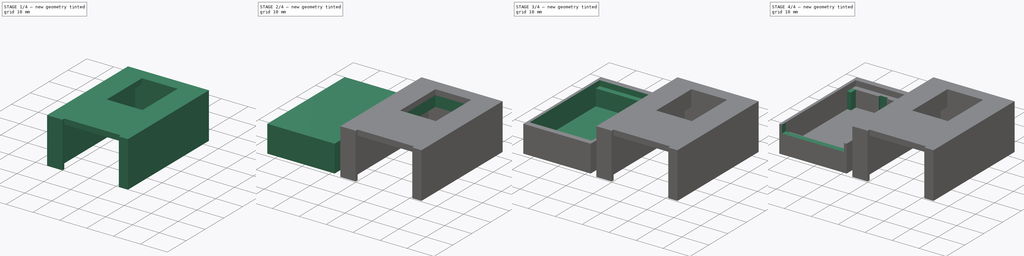
[diagram: build sequence overview — one tinted view per stage of 4, left to right]
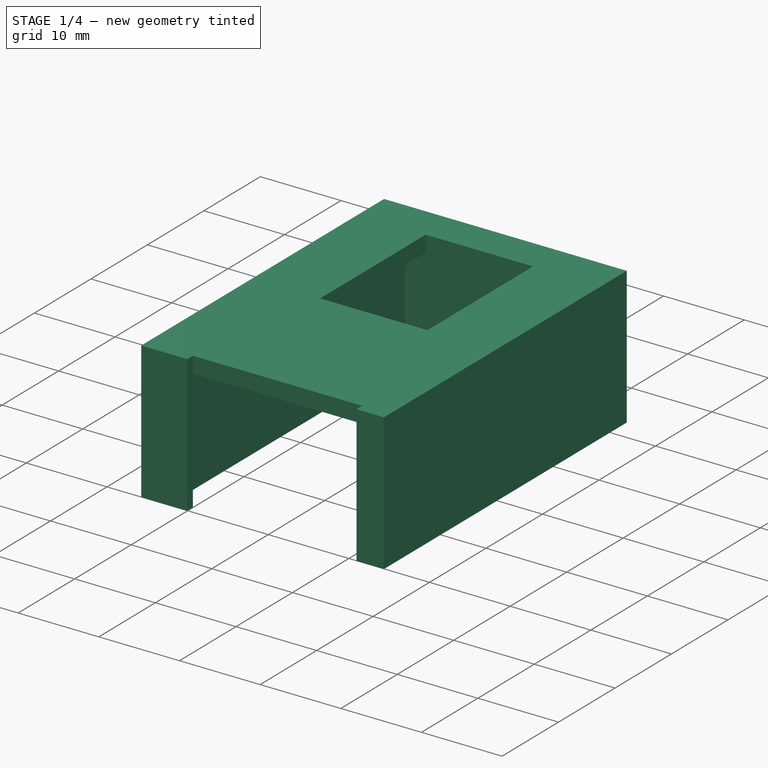
[diagram: stage 1 of 4 — iso view after this stage's code; geometry added in this stage tinted green]
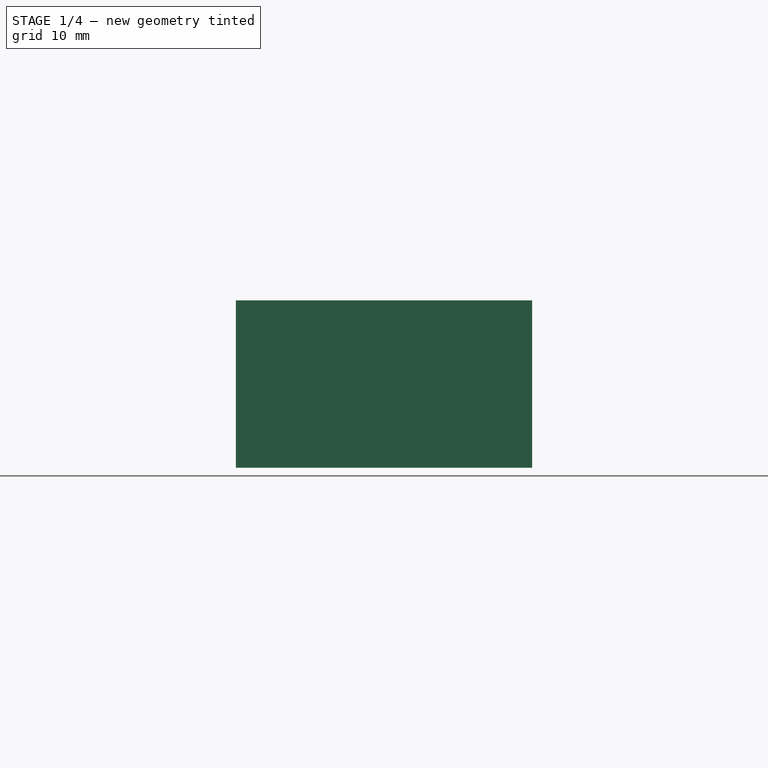
[diagram: stage 1 of 4 — front view after this stage's code; geometry added in this stage tinted green]
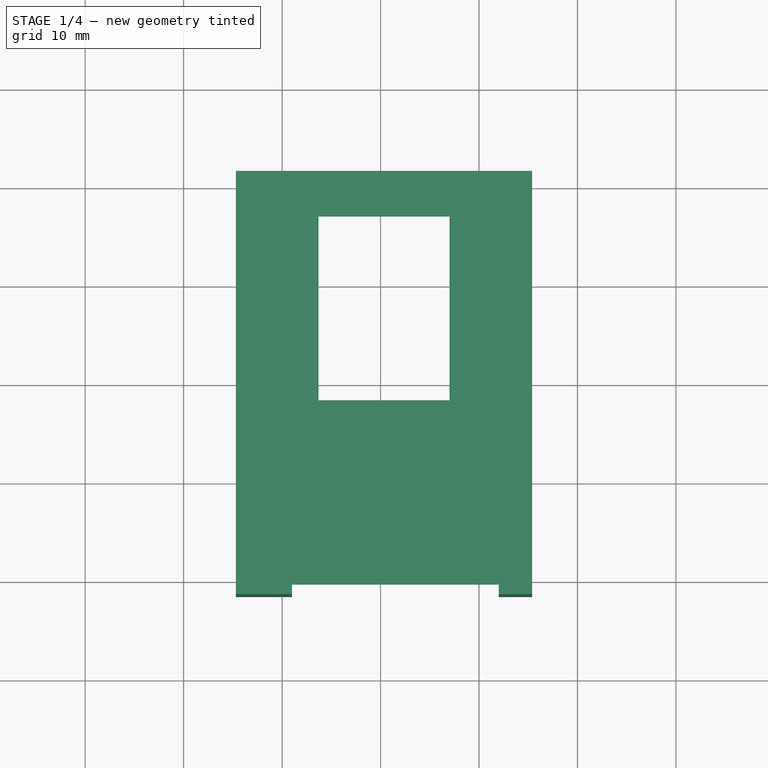
[diagram: stage 1 of 4 — top view after this stage's code; geometry added in this stage tinted green]
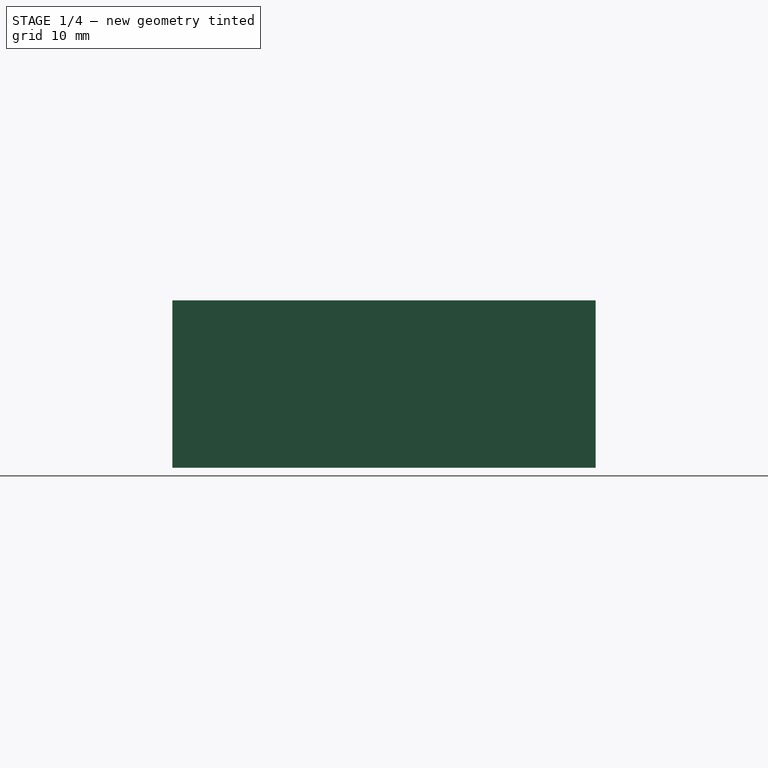
[diagram: stage 1 of 4 — right view after this stage's code; geometry added in this stage tinted green]
FCSTD DOCUMENT  (FreeCAD 0.17R13528 (Git))
Label: Caja-7segmentos
License: All rights reserved
LicenseURL: http://en.wikipedia.org/wiki/All_rights_reserved
objects: Sketcher::SketchObject×12, PartDesign::Pocket×7, PartDesign::Pad×5, PartDesign::Body×2, App::DocumentObjectGroup×2, Part::FeaturePython×2
note: 40 computed .brp shape members not serialized (recipe doc carries the construction recipe); baked Part::Feature solids carry a one-line shape summary decoded from their .brp

FEATURE [Sketcher::SketchObject] Sketch007
  MapMode = 5
  Support = -> [XY_Plane001]
  sketch-geometry (12):
    g0: LineSegment [constr] StartX=20 StartY=18.5 StartZ=0 EndX=43 EndY=18.5 EndZ=0
    g1: LineSegment [constr] StartX=43 StartY=18.5 StartZ=0 EndX=43 EndY=-18.5 EndZ=0
    g2: LineSegment [constr] StartX=43 StartY=-18.5 StartZ=0 EndX=20 EndY=-18.5 EndZ=0
    g3: LineSegment [constr] StartX=20 StartY=-18.5 StartZ=0 EndX=20 EndY=18.5 EndZ=0
    g4: LineSegment StartX=17.6 StartY=21.5 StartZ=0 EndX=45.4 EndY=21.5 EndZ=0
    g5: LineSegment StartX=45.4 StartY=21.5 StartZ=0 EndX=45.4 EndY=-21.5 EndZ=0
    g6: LineSegment StartX=45.4 StartY=-21.5 StartZ=0 EndX=42 EndY=-21.5 EndZ=0
    g7: LineSegment StartX=17.6 StartY=-21.5 StartZ=0 EndX=17.6 EndY=21.5 EndZ=0
    g8: LineSegment StartX=21 StartY=-21.5 StartZ=0 EndX=21 EndY=-20.5 EndZ=0
    g9: LineSegment StartX=21 StartY=-20.5 StartZ=0 EndX=42 EndY=-20.5 EndZ=0
    g10: LineSegment StartX=42 StartY=-20.5 StartZ=0 EndX=42 EndY=-21.5 EndZ=0
    g11: LineSegment StartX=21 StartY=-21.5 StartZ=0 EndX=17.6 EndY=-21.5 EndZ=0
  constraints (35):
    c: Coincident(g0,g1)
    c: Coincident(g1,g2)
    c: Coincident(g2,g3)
    c: Coincident(g3,g0)
    c: Horizontal(g0)
    c: Horizontal(g2)
    c: Vertical(g1)
    c: Vertical(g3)
    c: Symmetric(g0,g2,g-1)
    c: DistanceX(g-1,g2) = 20
    c: DistanceX(g0,g0) = 23
    c: DistanceY(g1,g1) = 37
    c: Coincident(g4,g5)
    c: Coincident(g5,g6)
    c: Coincident(g11,g7)
    c: Coincident(g7,g4)
    c: Horizontal(g4)
    c: Horizontal(g6)
    c: Vertical(g5)
    c: Vertical(g7)
    c: Vertical(g8)
    c: Coincident(g8,g9)
    c: Horizontal(g9)
    c: Coincident(g9,g10)
    c: Vertical(g10)
    c: Tangent(g6,g11)
    c: Coincident(g8,g11)
    c: Coincident(g10,g6)
    c: DistanceX(g4,g0) = 2.4
    c: DistanceY(g7,g2) = 3
    c: DistanceY(g8,g8) = 1
    c: Symmetric(g4,g7,g-1)
    c: DistanceX(g0,g4) = 2.4
    c: Equal(g6,g11)
    c: DistanceX(g9,g1) = 1
FEATURE [PartDesign::Pad] Pad001  label="tapa-1"
  Length = 17
  Length2 = 100
  Profile = -> Sketch007
  Type = 0
FEATURE [Sketcher::SketchObject] Sketch008
  ExternalGeometry = -> [Pad001]
  MapMode = 5
  Placement = pos=(0,0,0) rot=(1,0,0;3.14159rad)
  Support = -> [Pad001]
  sketch-geometry (4):
    g0: LineSegment StartX=18.6 StartY=20.5 StartZ=0 EndX=44.4 EndY=20.5 EndZ=0
    g1: LineSegment StartX=44.4 StartY=20.5 StartZ=0 EndX=44.4 EndY=-20.5 EndZ=0
    g2: LineSegment StartX=44.4 StartY=-20.5 StartZ=0 EndX=18.6 EndY=-20.5 EndZ=0
    g3: LineSegment StartX=18.6 StartY=-20.5 StartZ=0 EndX=18.6 EndY=20.5 EndZ=0
  constraints (12):
    c: Coincident(g0,g1)
    c: Coincident(g1,g2)
    c: Coincident(g2,g3)
    c: Coincident(g3,g0)
    c: Horizontal(g0)
    c: Horizontal(g2)
    c: Vertical(g1)
    c: Vertical(g3)
    c: Symmetric(g0,g2,g-1)
    c: DistanceY(g-3,g2) = 1
    c: DistanceX(g1,g-3) = 1
    c: DistanceX(g-3,g2) = 1
FEATURE [PartDesign::Pocket] Pocket005  label="tapa-2"
  BaseFeature = -> Pad001
  Length = 15
  Length2 = 100
  Profile = -> Sketch008
  Type = 0
FEATURE [Sketcher::SketchObject] Sketch009
  ExternalGeometry = -> [Pocket005]
  MapMode = 5
  Placement = pos=(0,0,17) rot=(0,0,1;0rad)
  Support = -> [Pocket005]
  sketch-geometry (8):
    g0: LineSegment [constr] StartX=24.2 StartY=16.4 StartZ=0 EndX=36.5 EndY=16.4 EndZ=0
    g1: LineSegment [constr] StartX=36.5 StartY=16.4 StartZ=0 EndX=36.5 EndY=-1.3 EndZ=0
    g2: LineSegment [constr] StartX=36.5 StartY=-1.3 StartZ=0 EndX=24.2 EndY=-1.3 EndZ=0
    g3: LineSegment [constr] StartX=24.2 StartY=-1.3 StartZ=0 EndX=24.2 EndY=16.4 EndZ=0
    g4: LineSegment StartX=23.7 StartY=16.9 StartZ=0 EndX=37 EndY=16.9 EndZ=0
    g5: LineSegment StartX=37 StartY=16.9 StartZ=0 EndX=37 EndY=-1.8 EndZ=0
    g6: LineSegment StartX=37 StartY=-1.8 StartZ=0 EndX=23.7 EndY=-1.8 EndZ=0
    g7: LineSegment StartX=23.7 StartY=-1.8 StartZ=0 EndX=23.7 EndY=16.9 EndZ=0
  constraints (24):
    c: Coincident(g0,g1)
    c: Coincident(g1,g2)
    c: Coincident(g2,g3)
    c: Coincident(g3,g0)
    c: Horizontal(g0)
    c: Horizontal(g2)
    c: Vertical(g1)
    c: Vertical(g3)
    c: DistanceX(g0,g0) = 12.3
    c: DistanceY(g1,g1) = 17.7
    c: Coincident(g4,g5)
    c: Coincident(g5,g6)
    c: Coincident(g6,g7)
    c: Coincident(g7,g4)
    c: Horizontal(g4)
    c: Horizontal(g6)
    c: Vertical(g5)
    c: Vertical(g7)
    c: DistanceY(g6,g2) = 0.5
    c: DistanceX(g6,g2) = 0.5
    c: DistanceX(g1,g5) = 0.5
    c: DistanceY(g0,g4) = 0.5
    c: DistanceY(g4,g-3) = 4.6
    c: DistanceX(g4,g-3) = 8.4
FEATURE [PartDesign::Pocket] Pocket006  label="tapa-3"
  BaseFeature = -> Pocket005
  Length = 5
  Length2 = 100
  Profile = -> Sketch009
  Type = 0
FEATURE [Sketcher::SketchObject] Sketch010
  ExternalGeometry = -> [Pocket006]
  MapMode = 5
  Support = -> [XY_Plane001]
  sketch-geometry (4):
    g0: LineSegment StartX=15.3 StartY=21.5 StartZ=0 EndX=17.6 EndY=21.5 EndZ=0
    g1: LineSegment StartX=17.6 StartY=21.5 StartZ=0 EndX=17.6 EndY=-21.5 EndZ=0
    g2: LineSegment StartX=17.6 StartY=-21.5 StartZ=0 EndX=15.3 EndY=-21.5 EndZ=0
    g3: LineSegment StartX=15.3 StartY=-21.5 StartZ=0 EndX=15.3 EndY=21.5 EndZ=0
  constraints (12):
    c: Coincident(g0,g1)
    c: Coincident(g1,g2)
    c: Coincident(g2,g3)
    c: Coincident(g3,g0)
    c: Horizontal(g0)
    c: Horizontal(g2)
    c: Vertical(g1)
    c: Vertical(g3)
    c: DistanceX(g2,g2) = 2.3
    c: DistanceY(g0,g-3) = 0
    c: DistanceX(g1,g-3) = 0
    c: DistanceY(g1,g1) = 43
FEATURE [PartDesign::Pad] Pad002  label="tapa-4"
  BaseFeature = -> Pocket006
  Length = 17
  Length2 = 100
  Profile = -> Sketch010
  Type = 0
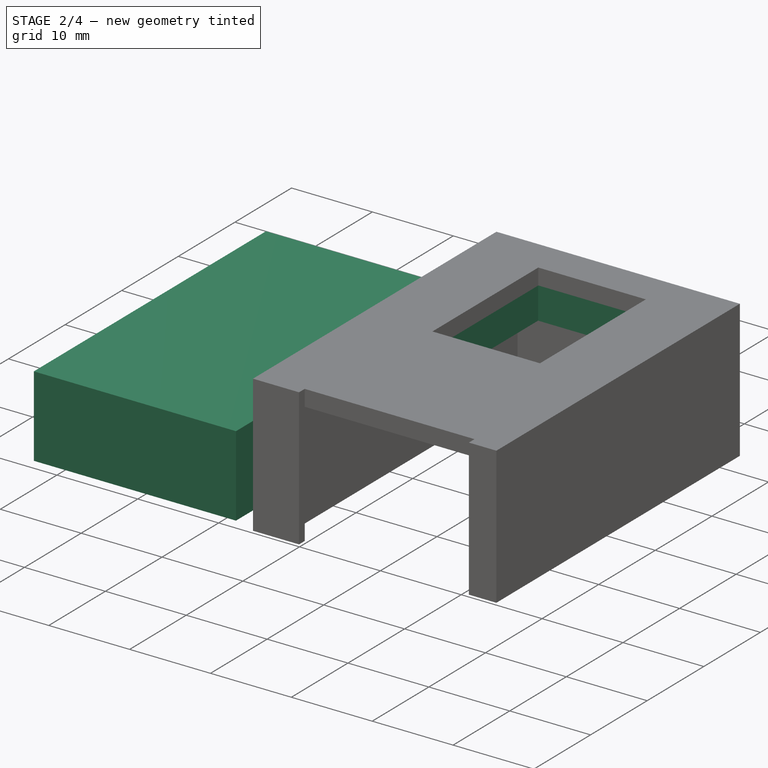
[diagram: stage 2 of 4 — iso view after this stage's code; geometry added in this stage tinted green]
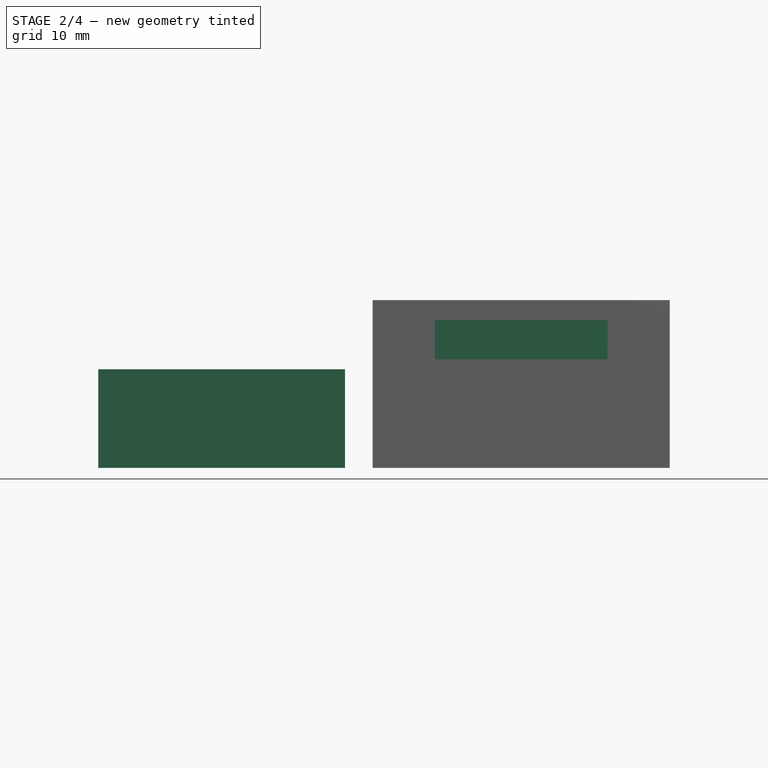
[diagram: stage 2 of 4 — front view after this stage's code; geometry added in this stage tinted green]
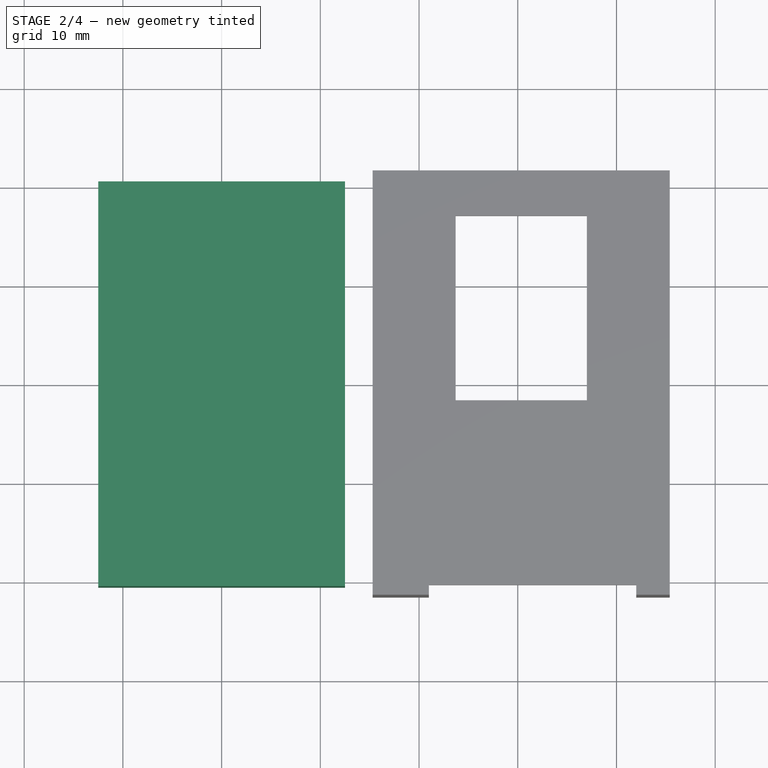
[diagram: stage 2 of 4 — top view after this stage's code; geometry added in this stage tinted green]
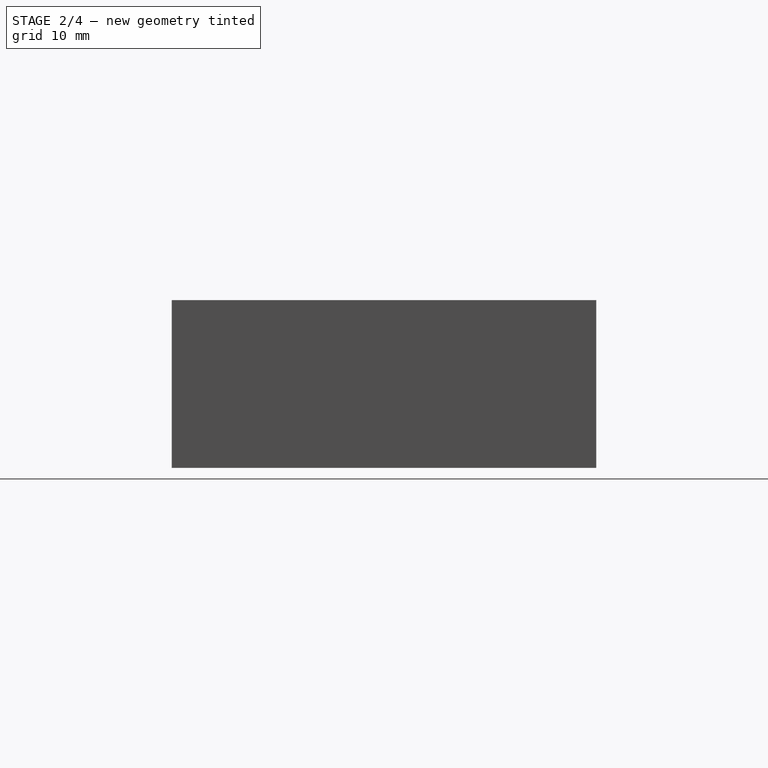
[diagram: stage 2 of 4 — right view after this stage's code; geometry added in this stage tinted green]
FEATURE [Sketcher::SketchObject] Sketch  label="Sketch-base"
  MapMode = 5
  Support = -> [XY_Plane]
  sketch-geometry (8):
    g0: LineSegment [constr] StartX=-11.5 StartY=18.5 StartZ=0 EndX=11.5 EndY=18.5 EndZ=0
    g1: LineSegment [constr] StartX=11.5 StartY=18.5 StartZ=0 EndX=11.5 EndY=-18.5 EndZ=0
    g2: LineSegment [constr] StartX=11.5 StartY=-18.5 StartZ=0 EndX=-11.5 EndY=-18.5 EndZ=0
    g3: LineSegment [constr] StartX=-11.5 StartY=-18.5 StartZ=0 EndX=-11.5 EndY=18.5 EndZ=0
    g4: LineSegment StartX=-12.5 StartY=20.5 StartZ=0 EndX=12.5 EndY=20.5 EndZ=0
    g5: LineSegment StartX=12.5 StartY=20.5 StartZ=0 EndX=12.5 EndY=-20.5 EndZ=0
    g6: LineSegment StartX=12.5 StartY=-20.5 StartZ=0 EndX=-12.5 EndY=-20.5 EndZ=0
    g7: LineSegment StartX=-12.5 StartY=-20.5 StartZ=0 EndX=-12.5 EndY=20.5 EndZ=0
  constraints (22):
    c: Coincident(g0,g1)
    c: Coincident(g1,g2)
    c: Coincident(g2,g3)
    c: Coincident(g3,g0)
    c: Horizontal(g0)
    c: Horizontal(g2)
    c: Vertical(g1)
    c: Vertical(g3)
    c: Symmetric(g0,g1,g-1)
    c: DistanceX(g0,g0) = 23
    c: DistanceY(g1,g1) = 37
    c: Coincident(g4,g5)
    c: Coincident(g5,g6)
    c: Coincident(g6,g7)
    c: Coincident(g7,g4)
    c: Horizontal(g4)
    c: Horizontal(g6)
    c: Vertical(g5)
    c: Vertical(g7)
    c: Symmetric(g4,g5,g-1)
    c: DistanceY(g0,g4) = 2
    c: DistanceX(g6,g2) = 1
FEATURE [PartDesign::Pad] Pad  label="base001"
  Length = 10
  Length2 = 100
  Profile = -> Sketch
  Type = 0
FEATURE [Sketcher::SketchObject] Sketch011
  ExternalGeometry = -> [Pad002]
  MapMode = 5
  Placement = pos=(0,0,17) rot=(0,0,1;0rad)
  Support = -> [Pad002]
  sketch-geometry (16):
    g0: LineSegment StartX=37.1 StartY=17 StartZ=0 EndX=39.1 EndY=17 EndZ=0
    g1: LineSegment StartX=39.1 StartY=17 StartZ=0 EndX=39.1 EndY=-1.9 EndZ=0
    g2: LineSegment StartX=39.1 StartY=-1.9 StartZ=0 EndX=37.1 EndY=-1.9 EndZ=0
    g3: LineSegment StartX=37.1 StartY=-1.9 StartZ=0 EndX=37.1 EndY=17 EndZ=0
    g4: LineSegment StartX=21.6 StartY=17 StartZ=0 EndX=23.6 EndY=17 EndZ=0
    g5: LineSegment StartX=23.6 StartY=17 StartZ=0 EndX=23.6 EndY=-1.9 EndZ=0
    g6: LineSegment StartX=23.6 StartY=-1.9 StartZ=0 EndX=21.6 EndY=-1.9 EndZ=0
    g7: LineSegment StartX=21.6 StartY=-1.9 StartZ=0 EndX=21.6 EndY=17 EndZ=0
    g8: LineSegment StartX=21.6 StartY=17 StartZ=0 EndX=39.1 EndY=17 EndZ=0
    g9: LineSegment StartX=39.1 StartY=17 StartZ=0 EndX=39.1 EndY=19 EndZ=0
    g10: LineSegment StartX=39.1 StartY=19 StartZ=0 EndX=21.6 EndY=19 EndZ=0
    g11: LineSegment StartX=21.6 StartY=19 StartZ=0 EndX=21.6 EndY=17 EndZ=0
    g12: LineSegment StartX=21.6 StartY=-1.9 StartZ=0 EndX=39.1 EndY=-1.9 EndZ=0
    g13: LineSegment StartX=39.1 StartY=-1.9 StartZ=0 EndX=39.1 EndY=-3.9 EndZ=0
    g14: LineSegment StartX=39.1 StartY=-3.9 StartZ=0 EndX=21.6 EndY=-3.9 EndZ=0
    g15: LineSegment StartX=21.6 StartY=-3.9 StartZ=0 EndX=21.6 EndY=-1.9 EndZ=0
  constraints (46):
    c: Coincident(g0,g1)
    c: Coincident(g1,g2)
    c: Coincident(g2,g3)
    c: Coincident(g3,g0)
    c: Horizontal(g0)
    c: Horizontal(g2)
    c: Vertical(g1)
    c: Vertical(g3)
    c: Coincident(g4,g5)
    c: Coincident(g5,g6)
    c: Coincident(g6,g7)
    c: Coincident(g7,g4)
    c: Horizontal(g4)
    c: Horizontal(g6)
    c: Vertical(g5)
    c: Vertical(g7)
    c: Equal(g0,g4)
    c: Equal(g5,g3)
    c: DistanceY(g1,g1) = 18.9
    c: DistanceX(g-3,g0) = 0.1
    c: DistanceX(g4,g-4) = 0.1
    c: DistanceY(g-3,g-3) = 18.7
    c: DistanceY(g-4,g5) = -0.1
    c: Coincident(g8,g9)
    c: Coincident(g9,g10)
    c: Coincident(g10,g11)
    c: Coincident(g11,g8)
    c: Horizontal(g8)
    c: Horizontal(g10)
    c: Vertical(g9)
    c: Vertical(g11)
    c: Coincident(g8,g4)
    c: Coincident(g8,g0)
    c: Equal(g0,g9)
    c: Coincident(g12,g13)
    c: Coincident(g13,g14)
    c: Coincident(g14,g15)
    c: Coincident(g15,g12)
    c: Horizontal(g12)
    c: Horizontal(g14)
    c: Vertical(g13)
    c: Vertical(g15)
    c: Coincident(g12,g6)
    c: Equal(g2,g13)
    c: Coincident(g12,g1)
    c: DistanceX(g2,g1) = 2
FEATURE [PartDesign::Pad] Pad003  label="tapa-final"
  BaseFeature = -> Pad002
  Length = 6
  Length2 = 100
  Profile = -> Sketch011
  Reversed = true
  Type = 0
FEATURE [Part::FeaturePython] Clone  label="tapa"  # Draft clone (typed FeaturePython)
  AttacherType = Attacher::AttachEngine3D
  Fuse = false
  Objects = -> [Pad003]
  Scale = (1,1,1)
FEATURE [App::DocumentObjectGroup] Grupo001  label="Export"
  Group = -> [Clone001,Clone]
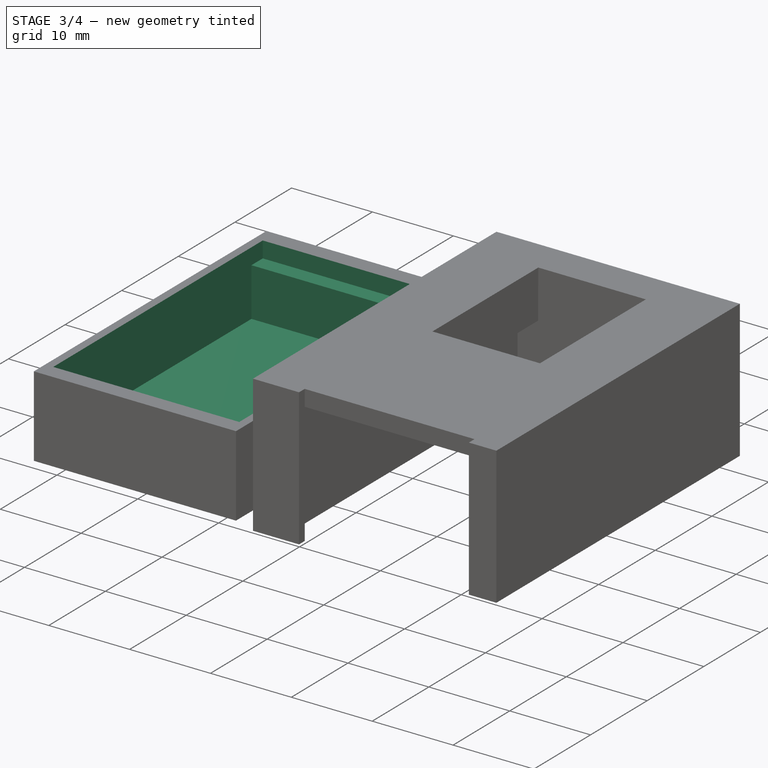
[diagram: stage 3 of 4 — iso view after this stage's code; geometry added in this stage tinted green]
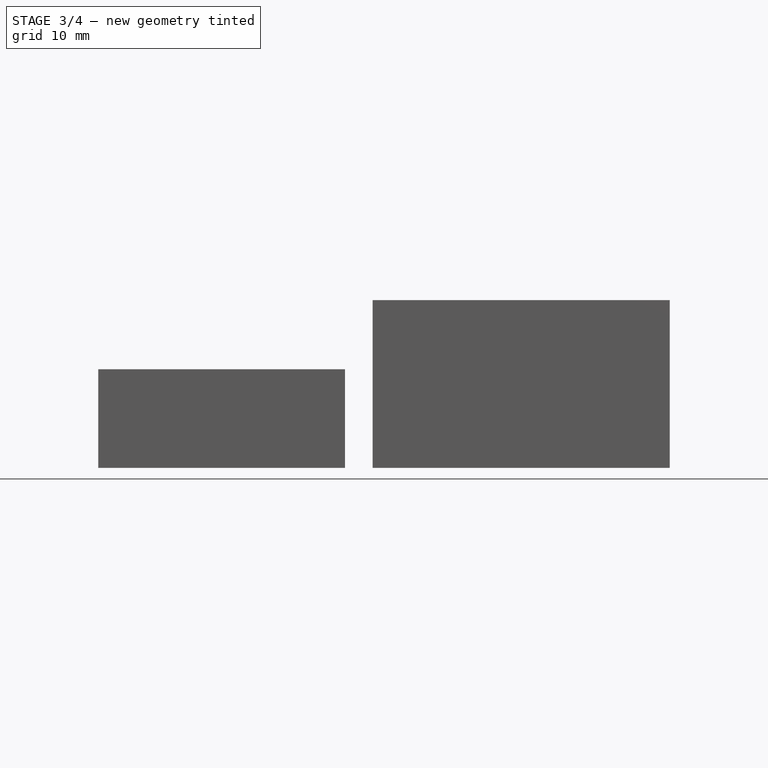
[diagram: stage 3 of 4 — front view after this stage's code; geometry added in this stage tinted green]
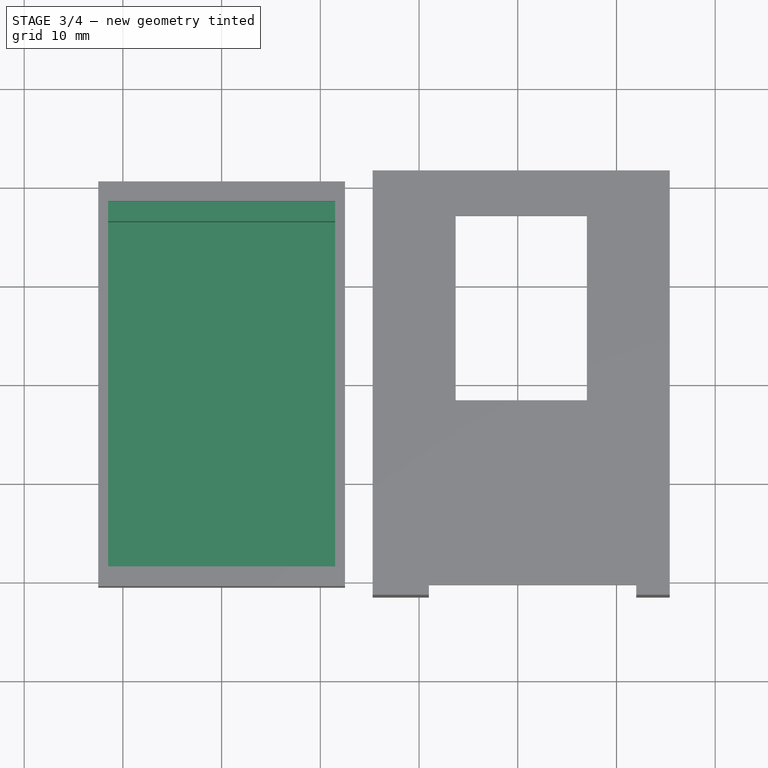
[diagram: stage 3 of 4 — top view after this stage's code; geometry added in this stage tinted green]
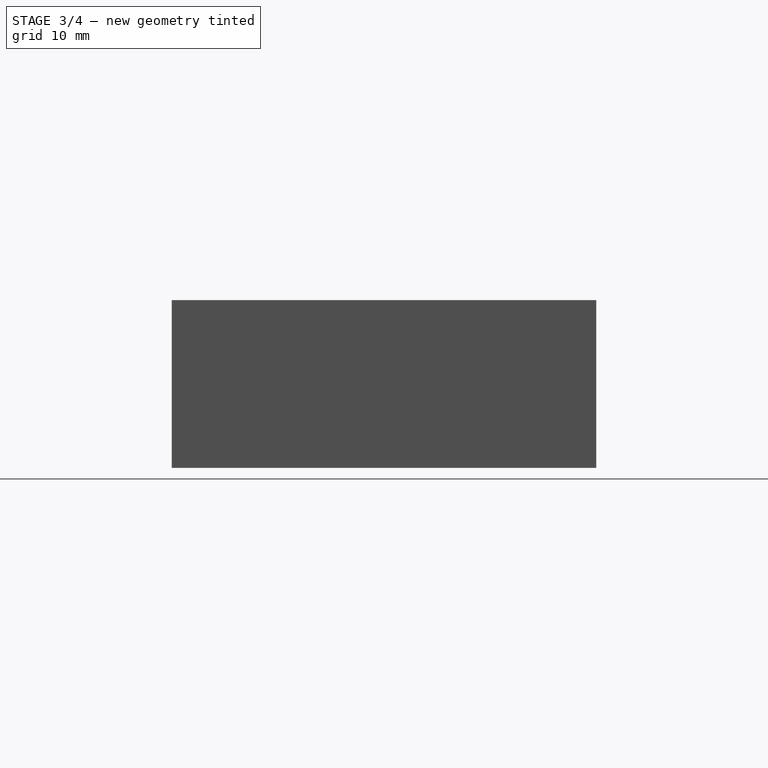
[diagram: stage 3 of 4 — right view after this stage's code; geometry added in this stage tinted green]
FEATURE [Sketcher::SketchObject] Sketch001  label="Sketch"
  MapMode = 5
  Placement = pos=(0,0,10) rot=(0,0,1;0rad)
  Support = -> [Pad]
  sketch-geometry (4):
    g0: LineSegment StartX=-11.5 StartY=18.5 StartZ=0 EndX=11.5 EndY=18.5 EndZ=0
    g1: LineSegment StartX=11.5 StartY=18.5 StartZ=0 EndX=11.5 EndY=-18.5 EndZ=0
    g2: LineSegment StartX=11.5 StartY=-18.5 StartZ=0 EndX=-11.5 EndY=-18.5 EndZ=0
    g3: LineSegment StartX=-11.5 StartY=-18.5 StartZ=0 EndX=-11.5 EndY=18.5 EndZ=0
  constraints (11):
    c: Coincident(g0,g1)
    c: Coincident(g1,g2)
    c: Coincident(g2,g3)
    c: Coincident(g3,g0)
    c: Horizontal(g0)
    c: Horizontal(g2)
    c: Vertical(g1)
    c: Vertical(g3)
    c: Symmetric(g0,g1,g-1)
    c: DistanceX(g0,g0) = 23
    c: DistanceY(g1,g1) = 37
FEATURE [PartDesign::Pocket] Pocket  label="base-vaciado-1"
  BaseFeature = -> Pad
  Length = 2
  Length2 = 100
  Profile = -> Sketch001
  Type = 0
FEATURE [Sketcher::SketchObject] Sketch002
  ExternalGeometry = -> [Pocket]
  MapMode = 5
  Placement = pos=(0,0,8) rot=(0,0,1;0rad)
  Support = -> [Pocket]
  sketch-geometry (4):
    g0: LineSegment StartX=-11.5 StartY=16.5 StartZ=0 EndX=11.5 EndY=16.5 EndZ=0
    g1: LineSegment StartX=11.5 StartY=16.5 StartZ=0 EndX=11.5 EndY=-16.5 EndZ=0
    g2: LineSegment StartX=11.5 StartY=-16.5 StartZ=0 EndX=-11.5 EndY=-16.5 EndZ=0
    g3: LineSegment StartX=-11.5 StartY=-16.5 StartZ=0 EndX=-11.5 EndY=16.5 EndZ=0
  constraints (11):
    c: Coincident(g0,g1)
    c: Coincident(g1,g2)
    c: Coincident(g2,g3)
    c: Coincident(g3,g0)
    c: Horizontal(g0)
    c: Horizontal(g2)
    c: Vertical(g1)
    c: Vertical(g3)
    c: Symmetric(g0,g1,g-1)
    c: DistanceY(g0,g-3) = 2
    c: DistanceX(g-3,g0) = 0
FEATURE [PartDesign::Pocket] Pocket001  label="base-vaciado-2"
  BaseFeature = -> Pocket
  Length = 6
  Length2 = 100
  Profile = -> Sketch002
  Type = 0
FEATURE [Sketcher::SketchObject] Sketch003
  ExternalGeometry = -> [Pocket001]
  MapMode = 5
  Placement = pos=(0,0,10) rot=(0,0,1;0rad)
  Support = -> [Pocket001]
  sketch-geometry (4):
    g0: LineSegment StartX=-11.5 StartY=-16.5 StartZ=0 EndX=11.5 EndY=-16.5 EndZ=0
    g1: LineSegment StartX=11.5 StartY=-16.5 StartZ=0 EndX=11.5 EndY=-18.5 EndZ=0
    g2: LineSegment StartX=11.5 StartY=-18.5 StartZ=0 EndX=-11.5 EndY=-18.5 EndZ=0
    g3: LineSegment StartX=-11.5 StartY=-18.5 StartZ=0 EndX=-11.5 EndY=-16.5 EndZ=0
  constraints (12):
    c: Coincident(g0,g1)
    c: Coincident(g1,g2)
    c: Coincident(g2,g3)
    c: Coincident(g3,g0)
    c: Horizontal(g0)
    c: Horizontal(g2)
    c: Vertical(g1)
    c: Vertical(g3)
    c: Symmetric(g0,g0,g-2)
    c: DistanceX(g0,g0) = 23
    c: DistanceY(g1,g1) = 2
    c: DistanceY(g-3,g1) = 0
FEATURE [PartDesign::Pocket] Pocket002  label="base-vaciado-3"
  BaseFeature = -> Pocket001
  Length = 4
  Length2 = 100
  Profile = -> Sketch003
  Type = 0
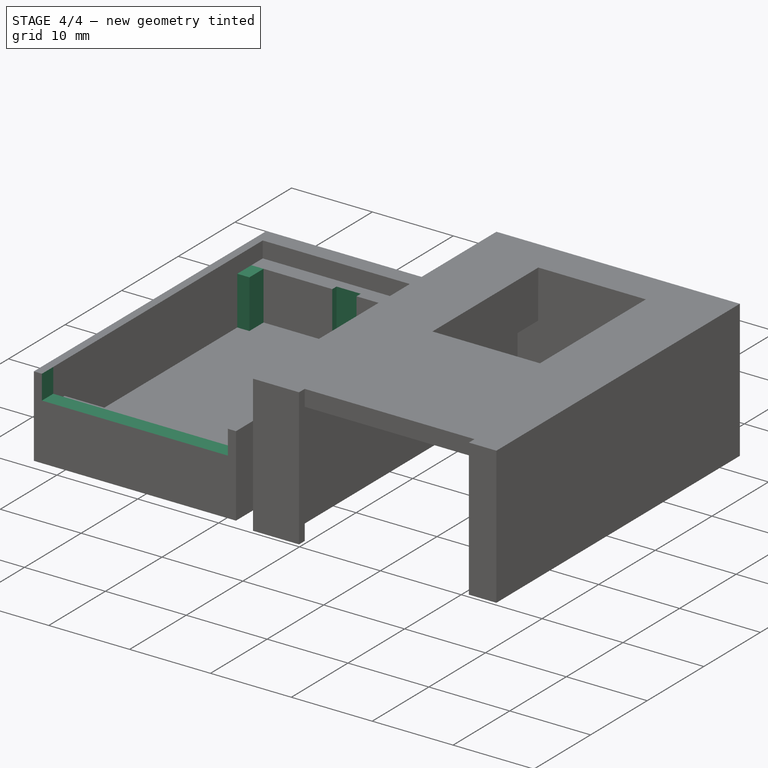
[diagram: stage 4 of 4 — iso view after this stage's code; geometry added in this stage tinted green]
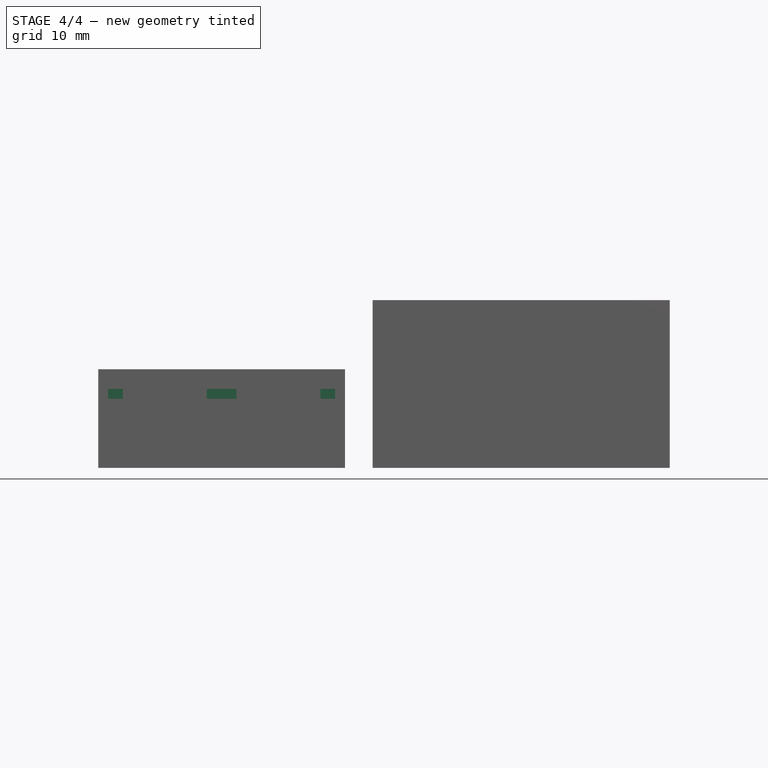
[diagram: stage 4 of 4 — front view after this stage's code; geometry added in this stage tinted green]
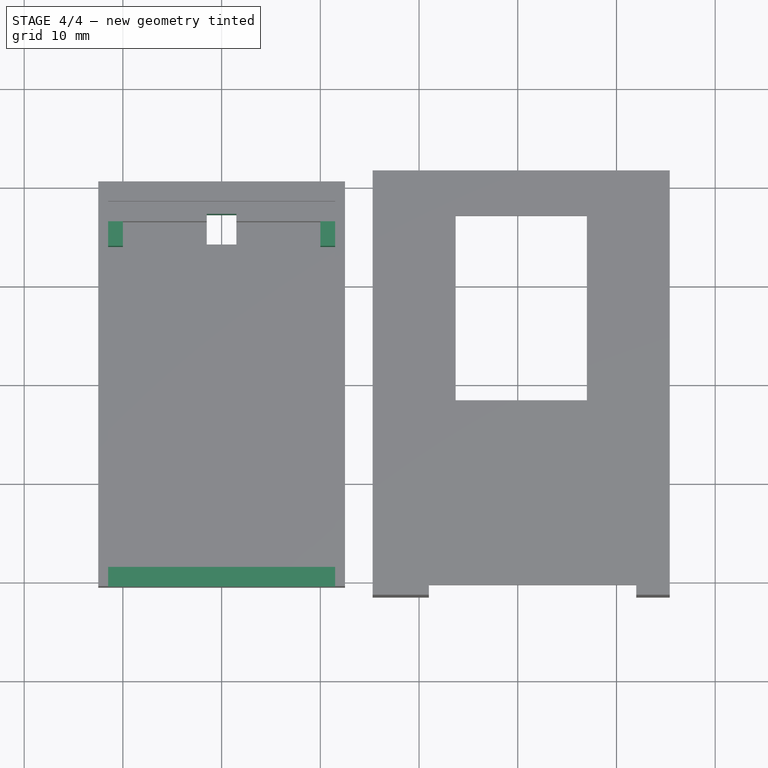
[diagram: stage 4 of 4 — top view after this stage's code; geometry added in this stage tinted green]
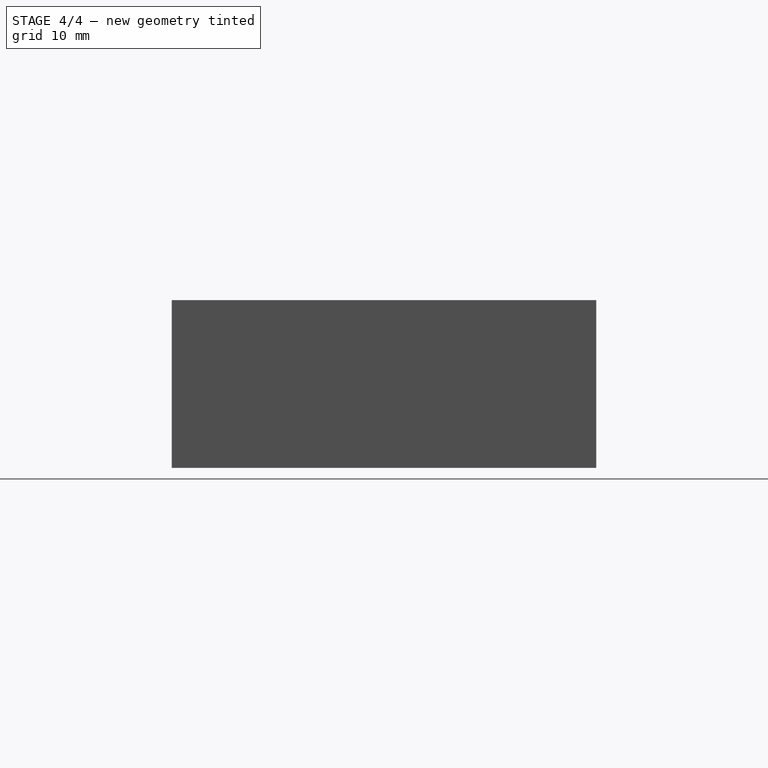
[diagram: stage 4 of 4 — right view after this stage's code; geometry added in this stage tinted green]
FEATURE [Sketcher::SketchObject] Sketch005  label="Sketch004"
  ExternalGeometry = -> [Pocket002]
  MapMode = 5
  Placement = pos=(0,0,10) rot=(0,0,1;0rad)
  Support = -> [Pocket002]
  sketch-geometry (4):
    g0: LineSegment StartX=-11.5 StartY=-16.5 StartZ=0 EndX=11.5 EndY=-16.5 EndZ=0
    g1: LineSegment StartX=11.5 StartY=-16.5 StartZ=0 EndX=11.5 EndY=-22.5 EndZ=0
    g2: LineSegment StartX=11.5 StartY=-22.5 StartZ=0 EndX=-11.5 EndY=-22.5 EndZ=0
    g3: LineSegment StartX=-11.5 StartY=-22.5 StartZ=0 EndX=-11.5 EndY=-16.5 EndZ=0
  constraints (12):
    c: Coincident(g0,g1)
    c: Coincident(g1,g2)
    c: Coincident(g2,g3)
    c: Coincident(g3,g0)
    c: Horizontal(g0)
    c: Horizontal(g2)
    c: Vertical(g1)
    c: Vertical(g3)
    c: Symmetric(g0,g0,g-2)
    c: DistanceX(g1,g-3) = 0
    c: DistanceY(g1,g1) = 6
    c: DistanceY(g-3,g0) = 2
FEATURE [PartDesign::Pocket] Pocket003  label="base-vaciado-4"
  BaseFeature = -> Pocket002
  Length = 3
  Length2 = 100
  Profile = -> Sketch005
  Type = 0
FEATURE [Sketcher::SketchObject] Sketch006
  ExternalGeometry = -> [Pocket003]
  MapMode = 5
  Placement = pos=(0,0,8) rot=(0,0,1;0rad)
  Support = -> [Pocket003]
  sketch-geometry (4):
    g0: LineSegment StartX=-1.5 StartY=17.25 StartZ=0 EndX=1.5 EndY=17.25 EndZ=0
    g1: LineSegment StartX=1.5 StartY=17.25 StartZ=0 EndX=1.5 EndY=14.25 EndZ=0
    g2: LineSegment StartX=1.5 StartY=14.25 StartZ=0 EndX=-1.5 EndY=14.25 EndZ=0
    g3: LineSegment StartX=-1.5 StartY=14.25 StartZ=0 EndX=-1.5 EndY=17.25 EndZ=0
  constraints (12):
    c: Coincident(g0,g1)
    c: Coincident(g1,g2)
    c: Coincident(g2,g3)
    c: Coincident(g3,g0)
    c: Horizontal(g0)
    c: Horizontal(g2)
    c: Vertical(g1)
    c: Vertical(g3)
    c: DistanceY(g1,g1) = 3
    c: DistanceX(g2,g2) = 3
    c: Symmetric(g0,g0,g-2)
    c: DistanceY(g0,g-3) = 1.25
FEATURE [PartDesign::Pocket] Pocket004  label="base-vaciado-005"
  BaseFeature = -> Pocket003
  Length = 5
  Length2 = 100
  Profile = -> Sketch006
  Type = 1
FEATURE [PartDesign::Body] Body001  label="Body-tapa"
  Group = -> [Sketch007,Pad001,Sketch008,Pocket005,Sketch009,Pocket006,Sketch010,Pad002,Sketch011,Pad003]
  Origin = -> Origin001
  Placement = pos=(10,0,0) rot=(0,0,1;0rad)
  Tip = -> Pad003
FEATURE [Sketcher::SketchObject] Sketch012
  ExternalGeometry = -> [Pocket004]
  MapMode = 5
  Placement = pos=(0,0,2) rot=(0,0,1;0rad)
  Support = -> [Pocket004]
  sketch-geometry (8):
    g0: LineSegment StartX=-11.5 StartY=16.5 StartZ=0 EndX=-10 EndY=16.5 EndZ=0
    g1: LineSegment StartX=-10 StartY=16.5 StartZ=0 EndX=-10 EndY=14 EndZ=0
    g2: LineSegment StartX=-10 StartY=14 StartZ=0 EndX=-11.5 EndY=14 EndZ=0
    g3: LineSegment StartX=-11.5 StartY=14 StartZ=0 EndX=-11.5 EndY=16.5 EndZ=0
    g4: LineSegment StartX=10 StartY=16.5 StartZ=0 EndX=11.5 EndY=16.5 EndZ=0
    g5: LineSegment StartX=11.5 StartY=16.5 StartZ=0 EndX=11.5 EndY=14 EndZ=0
    g6: LineSegment StartX=11.5 StartY=14 StartZ=0 EndX=10 EndY=14 EndZ=0
    g7: LineSegment StartX=10 StartY=14 StartZ=0 EndX=10 EndY=16.5 EndZ=0
  constraints (22):
    c: Coincident(g0,g1)
    c: Coincident(g1,g2)
    c: Coincident(g2,g3)
    c: Coincident(g3,g0)
    c: Horizontal(g0)
    c: Horizontal(g2)
    c: Vertical(g1)
    c: Vertical(g3)
    c: Coincident(g0,g-3)
    c: DistanceX(g2,g2) = 1.5
    c: DistanceY(g1,g1) = 2.5
    c: Coincident(g4,g5)
    c: Coincident(g5,g6)
    c: Coincident(g6,g7)
    c: Coincident(g7,g4)
    c: Horizontal(g4)
    c: Horizontal(g6)
    c: Vertical(g5)
    c: Vertical(g7)
    c: Coincident(g-4,g4)
    c: DistanceY(g7,g7) = 2.5
    c: DistanceX(g6,g6) = 1.5
FEATURE [PartDesign::Pad] Pad004  label="base-final"
  BaseFeature = -> Pocket004
  Length = 6
  Length2 = 100
  Profile = -> Sketch012
  Type = 0
FEATURE [PartDesign::Body] Body  label="Body-base"
  Group = -> [Sketch,Pad,Sketch001,Pocket,Sketch002,Pocket001,Sketch003,Pocket002,Sketch005,Pocket003,Sketch006,Pocket004,Sketch012,Pad004]
  Origin = -> Origin
  Tip = -> Pad004
FEATURE [App::DocumentObjectGroup] Grupo  label="Design"
  Group = -> [Body,Body001]
FEATURE [Part::FeaturePython] Clone001  label="base"  # Draft clone (typed FeaturePython)
  AttacherType = Attacher::AttachEngine3D
  Fuse = false
  Objects = -> [Pad004]
  Scale = (1,1,1)
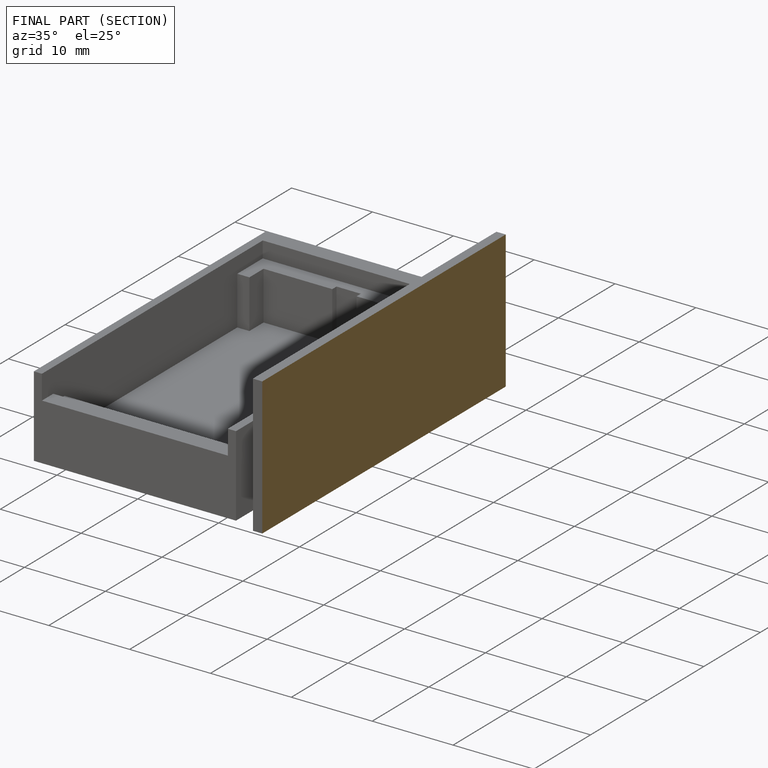
[diagram: finished part — half-section view (interior)]
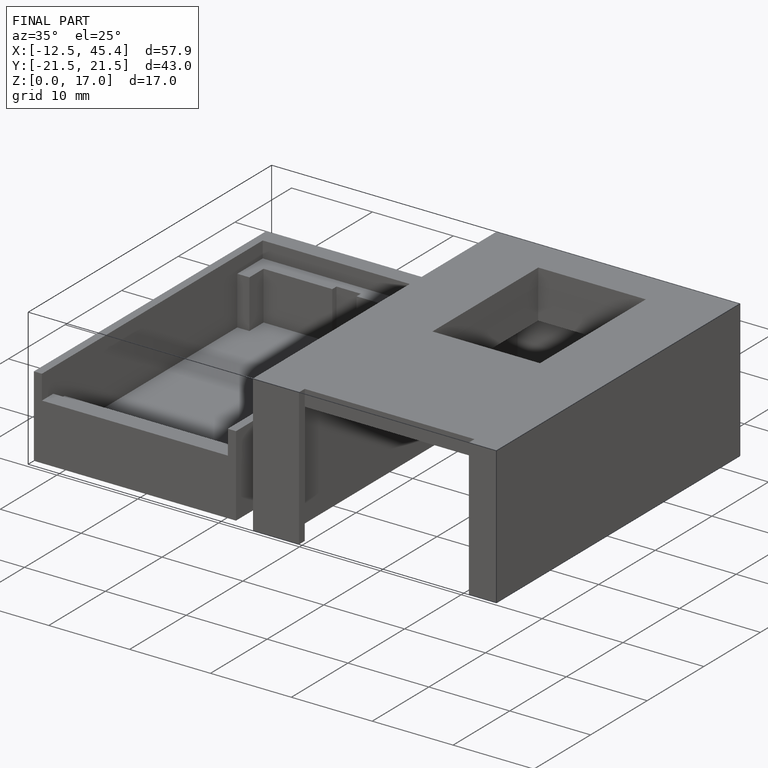
[diagram: finished part — iso view with bounding-box wireframe]
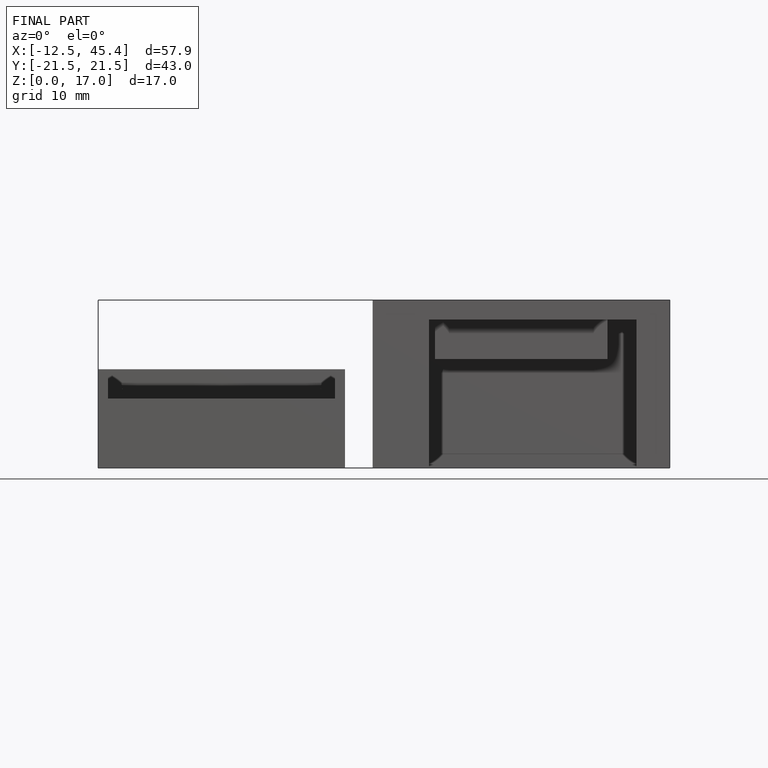
[diagram: finished part — front view with bounding-box wireframe]
